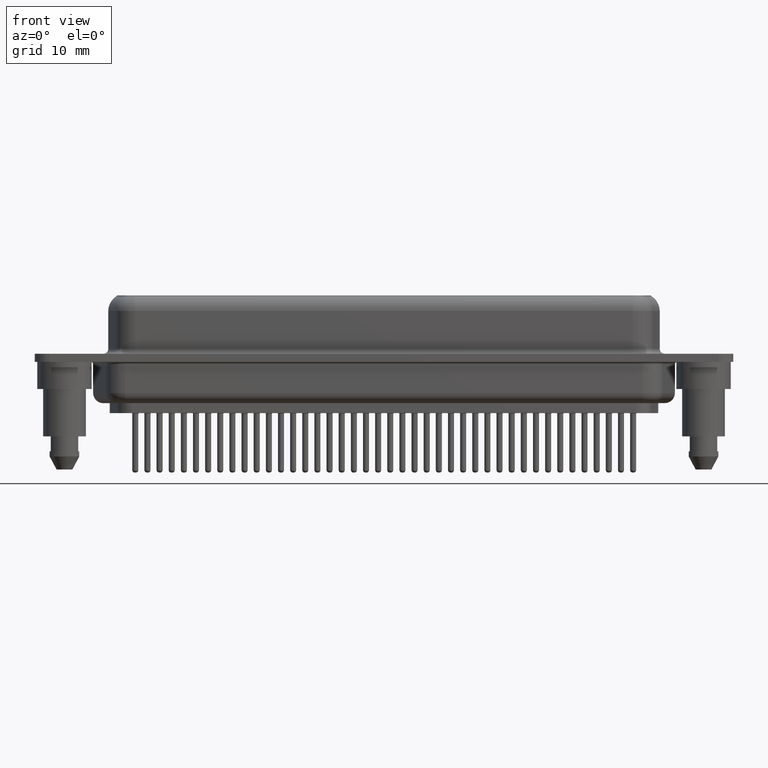
[diagram: clean part render]
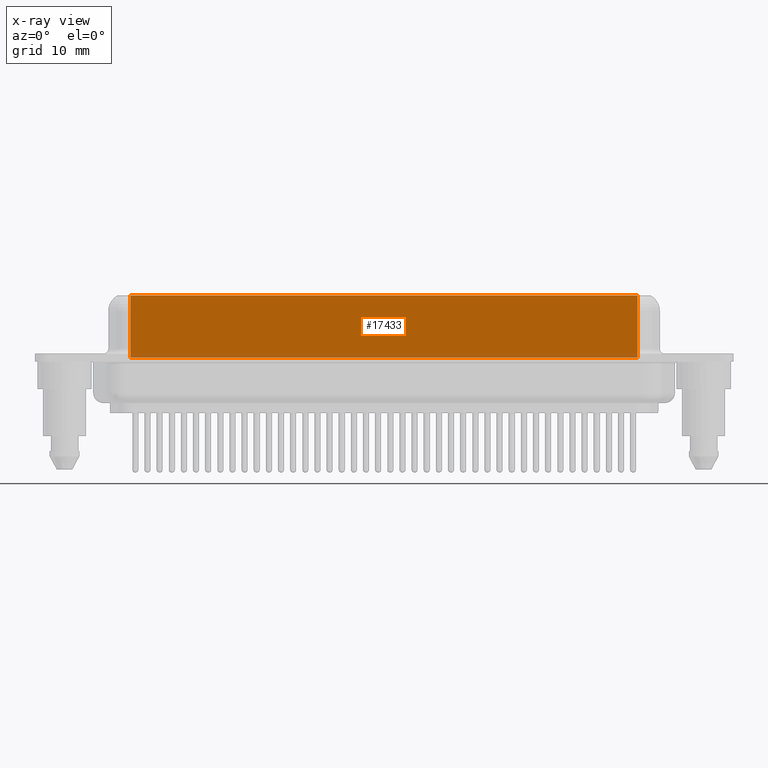
[diagram: x-ray — body ghosted, one internal face saturated and labeled with its STEP entity id]
A machine part, front view, then the same camera in x-ray: the body is ghosted and one INTERNAL B-rep face — a face not visible from any outside direction — is saturated and labeled: STEP entity #17433.
In plain terms, the highlighted planar face has unit normal (0, -1, 0).
Its self-contained STEP definition (entity closure, byte-faithful):
#92 = CARTESIAN_POINT ( 'NONE',  ( 6.550000000000006928, 3.100000000000004530, 0.0000000000000000000 ) ) ;
#1620 = EDGE_CURVE ( 'NONE', #3740, #20065, #10289, .T. ) ;
#2631 = EDGE_CURVE ( 'NONE', #14783, #20065, #7966, .T. ) ;
#3740 = VERTEX_POINT ( 'NONE', #32918 ) ;
#3869 = AXIS2_PLACEMENT_3D ( 'NONE', #38041, #37457, #14371 ) ;
#5262 = ORIENTED_EDGE ( 'NONE', *, *, #29081, .T. ) ;
#7966 = LINE ( 'NONE', #8566, #33742 ) ;
#8566 = CARTESIAN_POINT ( 'NONE',  ( 6.550000000000006928, 3.100000000000004530, 6.200000000000000178 ) ) ;
#8764 = DIRECTION ( 'NONE',  ( -0.0000000000000000000, -0.0000000000000000000, -1.000000000000000000 ) ) ;
#8807 = ORIENTED_EDGE ( 'NONE', *, *, #1620, .T. ) ;
#9927 = VECTOR ( 'NONE', #13888, 1000.000000000000000 ) ;
#10025 = EDGE_LOOP ( 'NONE', ( #24220, #10262, #5262, #8807 ) ) ;
#10262 = ORIENTED_EDGE ( 'NONE', *, *, #26435, .T. ) ;
#10289 = LINE ( 'NONE', #22060, #18023 ) ;
#13775 = PLANE ( 'NONE',  #3869 ) ;
#13888 = DIRECTION ( 'NONE',  ( 1.000000000000000000, 0.0000000000000000000, 0.0000000000000000000 ) ) ;
#14371 = DIRECTION ( 'NONE',  ( 0.0000000000000000000, -0.0000000000000000000, -1.000000000000000000 ) ) ;
#14783 = VERTEX_POINT ( 'NONE', #36423 ) ;
#16658 = CARTESIAN_POINT ( 'NONE',  ( 56.94999999999999574, 3.100000000000004530, 6.200000000000000178 ) ) ;
#16848 = LINE ( 'NONE', #19777, #9927 ) ;
#16861 = DIRECTION ( 'NONE',  ( -0.0000000000000000000, -0.0000000000000000000, -1.000000000000000000 ) ) ;
#16993 = VECTOR ( 'NONE', #16861, 1000.000000000000000 ) ;
#17113 = FACE_OUTER_BOUND ( 'NONE', #10025, .T. ) ;
#17433 = ADVANCED_FACE ( 'NONE', ( #17113 ), #13775, .F. ) ;
#18023 = VECTOR ( 'NONE', #22246, 1000.000000000000000 ) ;
#19777 = CARTESIAN_POINT ( 'NONE',  ( 6.550000000000006928, 3.100000000000004530, 6.200000000000000178 ) ) ;
#20065 = VERTEX_POINT ( 'NONE', #92 ) ;
#22060 = CARTESIAN_POINT ( 'NONE',  ( 6.550000000000006928, 3.100000000000004530, 0.0000000000000000000 ) ) ;
#22246 = DIRECTION ( 'NONE',  ( -1.000000000000000000, -0.0000000000000000000, -0.0000000000000000000 ) ) ;
#24220 = ORIENTED_EDGE ( 'NONE', *, *, #2631, .F. ) ;
#26435 = EDGE_CURVE ( 'NONE', #14783, #32898, #16848, .T. ) ;
#27956 = CARTESIAN_POINT ( 'NONE',  ( 56.94999999999999574, 3.100000000000004530, 6.200000000000000178 ) ) ;
#29081 = EDGE_CURVE ( 'NONE', #32898, #3740, #29167, .T. ) ;
#29167 = LINE ( 'NONE', #16658, #16993 ) ;
#32898 = VERTEX_POINT ( 'NONE', #27956 ) ;
#32918 = CARTESIAN_POINT ( 'NONE',  ( 56.94999999999999574, 3.100000000000004530, 0.0000000000000000000 ) ) ;
#33742 = VECTOR ( 'NONE', #8764, 1000.000000000000000 ) ;
#36423 = CARTESIAN_POINT ( 'NONE',  ( 6.550000000000006928, 3.100000000000004530, 6.200000000000000178 ) ) ;
#37457 = DIRECTION ( 'NONE',  ( 0.0000000000000000000, -1.000000000000000000, 0.0000000000000000000 ) ) ;
#38041 = CARTESIAN_POINT ( 'NONE',  ( 6.550000000000006928, 3.100000000000004530, 6.200000000000000178 ) ) ;